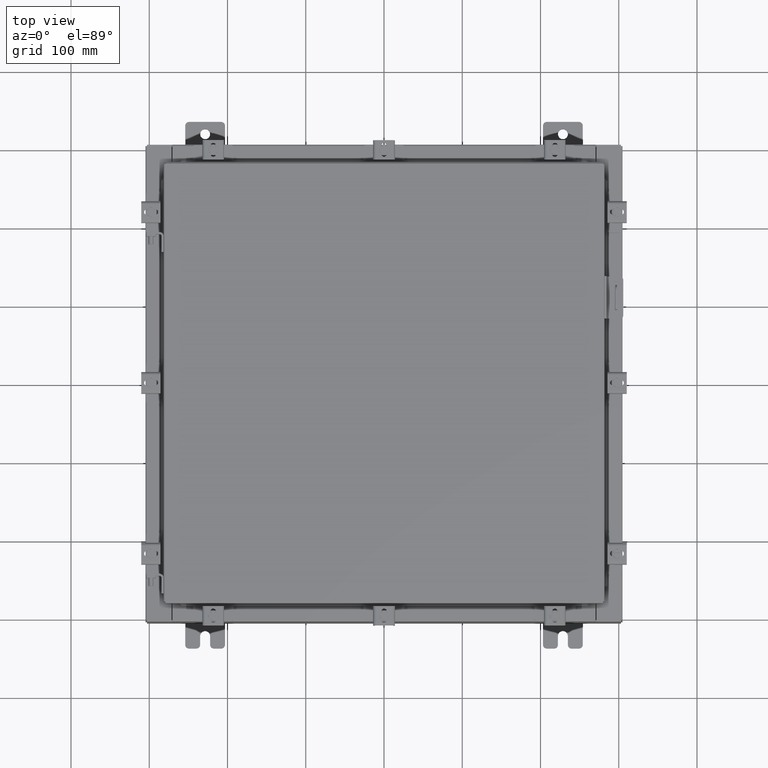
[diagram: clean part render]
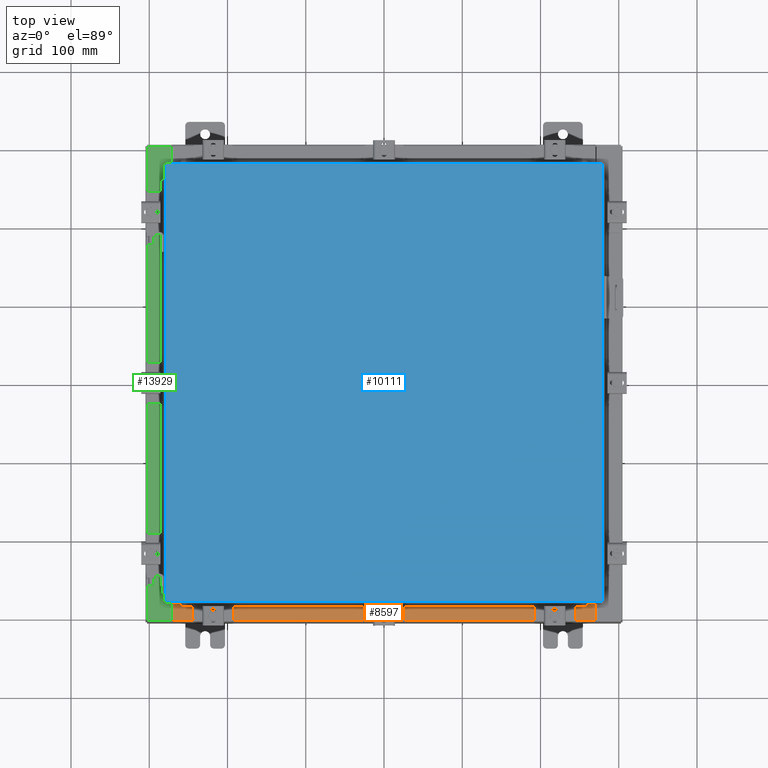
[diagram: same view with three faces highlighted in distinct colors, each labeled with its STEP entity id]
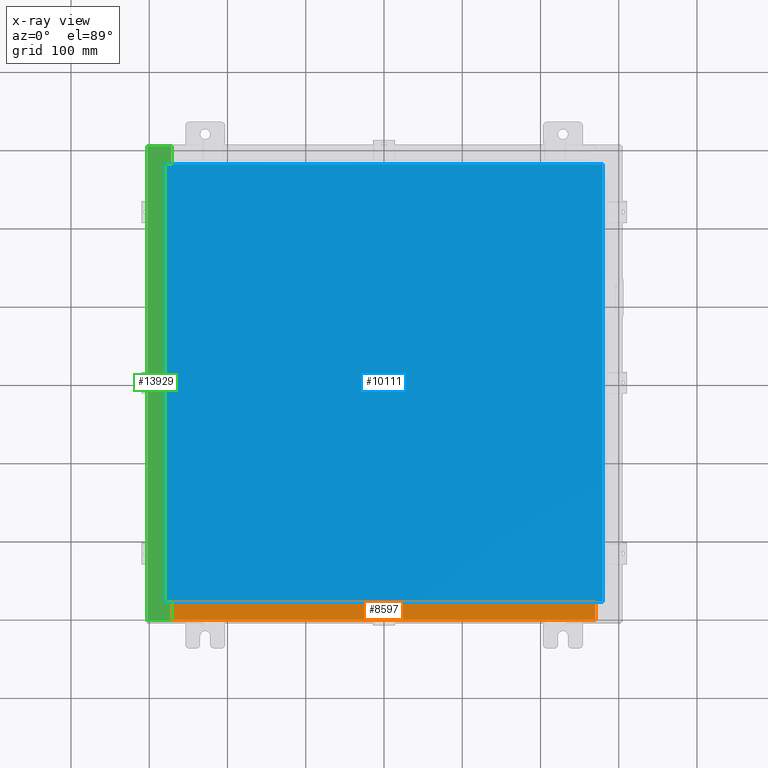
[diagram: x-ray of the same camera — body ghosted, the three highlighted faces saturated]
A machine part, top view with three faces highlighted in distinct colors.
The next image is the same camera in x-ray (body ghosted, the three faces saturated) — at least one of them is partly hidden behind the body in this view.
Their STEP definitions:

[orange] entity #8597 — the highlighted planar face has unit normal (-0, -0, 1).
#205 = LINE ( 'NONE', #3812, #9469 ) ;
#638 = CARTESIAN_POINT ( 'NONE',  ( 10.63720000000000200, -1.287299999999999900, 3.000000000000005300 ) ) ;
#991 = CARTESIAN_POINT ( 'NONE',  ( 10.63720000000000200, -1.300299999999999800, 3.000000000000005300 ) ) ;
#1097 = AXIS2_PLACEMENT_3D ( 'NONE', #4354, #21826, #11352 ) ;
#1126 = DIRECTION ( 'NONE',  ( -1.000000000000000000, 2.568202152506545800E-017, -9.159187855938968600E-032 ) ) ;
#1283 = VERTEX_POINT ( 'NONE', #4421 ) ;
#1821 = EDGE_LOOP ( 'NONE', ( #20573, #17112, #5939, #5387 ) ) ;
#2028 = CARTESIAN_POINT ( 'NONE',  ( -10.63720000000000200, -0.08770000000000000000, 3.000000000000000900 ) ) ;
#3298 = VERTEX_POINT ( 'NONE', #638 ) ;
#3812 = CARTESIAN_POINT ( 'NONE',  ( -10.63720000000000200, -0.07469999999999973900, 3.000000000000000900 ) ) ;
#4354 = CARTESIAN_POINT ( 'NONE',  ( 0.0000000000000000000, 1.069354855923099900E-014, 3.000000000000000900 ) ) ;
#4421 = CARTESIAN_POINT ( 'NONE',  ( 10.63720000000000400, -0.08769999999999965300, 3.000000000000000900 ) ) ;
#4562 = VERTEX_POINT ( 'NONE', #2028 ) ;
#4741 = DIRECTION ( 'NONE',  ( -1.000000000000000000, 0.0000000000000000000, 0.0000000000000000000 ) ) ;
#5387 = ORIENTED_EDGE ( 'NONE', *, *, #12896, .T. ) ;
#5939 = ORIENTED_EDGE ( 'NONE', *, *, #9220, .F. ) ;
#6288 = VECTOR ( 'NONE', #1126, 39.37007874015748100 ) ;
#6420 = CARTESIAN_POINT ( 'NONE',  ( 10.63720000000000400, -1.287299999999999900, 3.000000000000005300 ) ) ;
#8597 = ADVANCED_FACE ( 'NONE', ( #17156 ), #9621, .T. ) ;
#8784 = VERTEX_POINT ( 'NONE', #18961 ) ;
#9220 = EDGE_CURVE ( 'NONE', #1283, #3298, #14942, .T. ) ;
#9469 = VECTOR ( 'NONE', #16004, 39.37007874015748100 ) ;
#9621 = PLANE ( 'NONE',  #1097 ) ;
#10291 = VECTOR ( 'NONE', #13202, 39.37007874015748100 ) ;
#11352 = DIRECTION ( 'NONE',  ( 0.0000000000000000000, -1.000000000000000000, 3.566381192773190000E-015 ) ) ;
#12896 = EDGE_CURVE ( 'NONE', #1283, #4562, #15561, .T. ) ;
#13202 = DIRECTION ( 'NONE',  ( -0.0000000000000000000, -1.000000000000000000, 3.566381192773190000E-015 ) ) ;
#14942 = LINE ( 'NONE', #991, #10291 ) ;
#15561 = LINE ( 'NONE', #21987, #6288 ) ;
#16004 = DIRECTION ( 'NONE',  ( -0.0000000000000000000, 1.000000000000000000, -3.566381192773190000E-015 ) ) ;
#17112 = ORIENTED_EDGE ( 'NONE', *, *, #18108, .F. ) ;
#17156 = FACE_OUTER_BOUND ( 'NONE', #1821, .T. ) ;
#18108 = EDGE_CURVE ( 'NONE', #3298, #8784, #18502, .T. ) ;
#18502 = LINE ( 'NONE', #6420, #22055 ) ;
#18961 = CARTESIAN_POINT ( 'NONE',  ( -10.63720000000000200, -1.287299999999999200, 3.000000000000005300 ) ) ;
#20573 = ORIENTED_EDGE ( 'NONE', *, *, #20766, .F. ) ;
#20766 = EDGE_CURVE ( 'NONE', #8784, #4562, #205, .T. ) ;
#21826 = DIRECTION ( 'NONE',  ( 0.0000000000000000000, 3.566381192773190000E-015, 1.000000000000000000 ) ) ;
#21987 = CARTESIAN_POINT ( 'NONE',  ( -2.252313287748515100E-018, -0.08770000000000000000, 3.000000000000001300 ) ) ;
#22055 = VECTOR ( 'NONE', #4741, 39.37007874015748100 ) ;

[blue] entity #10111 — the highlighted planar face has unit normal (0, 0, -1).
#2422 = VERTEX_POINT ( 'NONE', #14852 ) ;
#2661 = VERTEX_POINT ( 'NONE', #15449 ) ;
#2706 = CARTESIAN_POINT ( 'NONE',  ( -11.00630000000000300, -11.00630000000000100, 0.0000000000000000000 ) ) ;
#3017 = PLANE ( 'NONE',  #5433 ) ;
#3217 = CARTESIAN_POINT ( 'NONE',  ( 11.00629999999999400, 11.00629999999999600, 0.0000000000000000000 ) ) ;
#3891 = CARTESIAN_POINT ( 'NONE',  ( -11.00630000000000300, 11.00629999999999600, 0.0000000000000000000 ) ) ;
#4821 = EDGE_CURVE ( 'NONE', #18234, #2661, #11670, .T. ) ;
#5433 = AXIS2_PLACEMENT_3D ( 'NONE', #16969, #6525, #18693 ) ;
#5897 = EDGE_CURVE ( 'NONE', #18603, #2422, #17352, .T. ) ;
#6192 = ORIENTED_EDGE ( 'NONE', *, *, #17171, .T. ) ;
#6525 = DIRECTION ( 'NONE',  ( 0.0000000000000000000, 0.0000000000000000000, -1.000000000000000000 ) ) ;
#6606 = ORIENTED_EDGE ( 'NONE', *, *, #5897, .T. ) ;
#7047 = DIRECTION ( 'NONE',  ( 0.0000000000000000000, 1.000000000000000000, 0.0000000000000000000 ) ) ;
#7077 = ORIENTED_EDGE ( 'NONE', *, *, #16208, .T. ) ;
#7818 = CARTESIAN_POINT ( 'NONE',  ( 11.00629999999999400, 11.00629999999999600, 0.0000000000000000000 ) ) ;
#8899 = FACE_OUTER_BOUND ( 'NONE', #21092, .T. ) ;
#10111 = ADVANCED_FACE ( 'NONE', ( #8899 ), #3017, .F. ) ;
#11168 = VECTOR ( 'NONE', #7047, 39.37007874015748100 ) ;
#11465 = DIRECTION ( 'NONE',  ( 1.000000000000000000, -0.0000000000000000000, -0.0000000000000000000 ) ) ;
#11615 = VECTOR ( 'NONE', #11465, 39.37007874015748100 ) ;
#11670 = LINE ( 'NONE', #7818, #20418 ) ;
#14309 = ORIENTED_EDGE ( 'NONE', *, *, #4821, .T. ) ;
#14349 = DIRECTION ( 'NONE',  ( 0.0000000000000000000, -1.000000000000000000, 0.0000000000000000000 ) ) ;
#14852 = CARTESIAN_POINT ( 'NONE',  ( 11.00629999999999400, -11.00630000000000100, 0.0000000000000000000 ) ) ;
#14970 = LINE ( 'NONE', #3891, #15503 ) ;
#15449 = CARTESIAN_POINT ( 'NONE',  ( -11.00630000000000300, 11.00629999999999600, 0.0000000000000000000 ) ) ;
#15503 = VECTOR ( 'NONE', #14349, 39.37007874015748100 ) ;
#15812 = LINE ( 'NONE', #17432, #11168 ) ;
#16208 = EDGE_CURVE ( 'NONE', #2422, #18234, #15812, .T. ) ;
#16326 = CARTESIAN_POINT ( 'NONE',  ( -11.00630000000000300, -11.00630000000000100, 0.0000000000000000000 ) ) ;
#16969 = CARTESIAN_POINT ( 'NONE',  ( 0.0000000000000000000, 0.0000000000000000000, 0.0000000000000000000 ) ) ;
#17171 = EDGE_CURVE ( 'NONE', #2661, #18603, #14970, .T. ) ;
#17352 = LINE ( 'NONE', #2706, #11615 ) ;
#17432 = CARTESIAN_POINT ( 'NONE',  ( 11.00629999999999400, -11.00630000000000100, 0.0000000000000000000 ) ) ;
#18234 = VERTEX_POINT ( 'NONE', #3217 ) ;
#18603 = VERTEX_POINT ( 'NONE', #16326 ) ;
#18693 = DIRECTION ( 'NONE',  ( -1.000000000000000000, 0.0000000000000000000, -0.0000000000000000000 ) ) ;
#20418 = VECTOR ( 'NONE', #21782, 39.37007874015748100 ) ;
#21092 = EDGE_LOOP ( 'NONE', ( #6606, #7077, #14309, #6192 ) ) ;
#21782 = DIRECTION ( 'NONE',  ( -1.000000000000000000, -0.0000000000000000000, -0.0000000000000000000 ) ) ;

[green] entity #13929 — the highlighted planar face has unit normal (0, 0, -1).
#86 = CIRCLE ( 'NONE', #17726, 0.01867499999999949400 ) ;
#227 = VECTOR ( 'NONE', #9045, 39.37007874015748100 ) ;
#263 = CARTESIAN_POINT ( 'NONE',  ( -10.69970000000002300, -10.63109999999999800, 5.925300000000008000 ) ) ;
#383 = VERTEX_POINT ( 'NONE', #21694 ) ;
#528 = DIRECTION ( 'NONE',  ( -1.000000000000000000, 0.0000000000000000000, 0.0000000000000000000 ) ) ;
#947 = CARTESIAN_POINT ( 'NONE',  ( -10.69970000000002300, 10.63109999999999600, 5.925300000000008000 ) ) ;
#1651 = DIRECTION ( 'NONE',  ( -1.000000000000000000, 0.0000000000000000000, 0.0000000000000000000 ) ) ;
#1931 = CARTESIAN_POINT ( 'NONE',  ( -10.69970000000002300, -3.338884789195309000E-030, 5.925300000000008000 ) ) ;
#2014 = DIRECTION ( 'NONE',  ( 1.000000000000000000, 0.0000000000000000000, 0.0000000000000000000 ) ) ;
#2044 = EDGE_CURVE ( 'NONE', #20932, #8613, #21930, .T. ) ;
#2056 = DIRECTION ( 'NONE',  ( -7.132762385546384700E-015, -0.0000000000000000000, 1.000000000000000000 ) ) ;
#2122 = AXIS2_PLACEMENT_3D ( 'NONE', #3849, #17809, #7366 ) ;
#2765 = AXIS2_PLACEMENT_3D ( 'NONE', #15658, #5225, #17430 ) ;
#3344 = VERTEX_POINT ( 'NONE', #5958 ) ;
#3488 = ORIENTED_EDGE ( 'NONE', *, *, #3676, .T. ) ;
#3600 = ORIENTED_EDGE ( 'NONE', *, *, #10267, .F. ) ;
#3676 = EDGE_CURVE ( 'NONE', #3344, #21624, #3859, .T. ) ;
#3849 = CARTESIAN_POINT ( 'NONE',  ( -4.252457061909017700E-014, 0.0000000000000000000, 5.925300000000084400 ) ) ;
#3859 = LINE ( 'NONE', #20006, #17228 ) ;
#3980 = VECTOR ( 'NONE', #9405, 39.37007874015748100 ) ;
#4167 = CARTESIAN_POINT ( 'NONE',  ( -10.75005000000002300, -10.63109999999999600, 5.925300000000008000 ) ) ;
#4292 = LINE ( 'NONE', #7259, #227 ) ;
#4533 = LINE ( 'NONE', #5896, #3980 ) ;
#4833 = CARTESIAN_POINT ( 'NONE',  ( -10.75005000000002300, -10.59374999999999800, 5.925300000000008000 ) ) ;
#4870 = CARTESIAN_POINT ( 'NONE',  ( -10.71270000000002300, 10.59374999999999800, 5.925300000000008000 ) ) ;
#5001 = EDGE_CURVE ( 'NONE', #20591, #12295, #4292, .T. ) ;
#5152 = CARTESIAN_POINT ( 'NONE',  ( -10.71270000000002300, 10.59374999999999800, 5.925300000000008000 ) ) ;
#5225 = DIRECTION ( 'NONE',  ( -7.132762385546384700E-015, -0.0000000000000000000, 1.000000000000000000 ) ) ;
#5376 = ORIENTED_EDGE ( 'NONE', *, *, #21462, .F. ) ;
#5673 = EDGE_CURVE ( 'NONE', #12996, #19179, #15444, .T. ) ;
#5765 = EDGE_CURVE ( 'NONE', #11090, #3344, #4533, .T. ) ;
#5896 = CARTESIAN_POINT ( 'NONE',  ( -10.69970000000002300, -3.338884789195309000E-030, 5.925300000000008000 ) ) ;
#5958 = CARTESIAN_POINT ( 'NONE',  ( -10.69970000000002300, 11.92529999999999800, 5.925300000000008000 ) ) ;
#6317 = EDGE_LOOP ( 'NONE', ( #7583, #16307, #3488, #9797, #8491, #13919, #9951, #8717, #5376, #3600, #13383, #11275 ) ) ;
#7241 = VECTOR ( 'NONE', #528, 39.37007874015748100 ) ;
#7259 = CARTESIAN_POINT ( 'NONE',  ( -10.75005000000002300, 10.59374999999999800, 5.925300000000008000 ) ) ;
#7366 = DIRECTION ( 'NONE',  ( -1.000000000000000000, 0.0000000000000000000, -7.132762385546384700E-015 ) ) ;
#7583 = ORIENTED_EDGE ( 'NONE', *, *, #16181, .F. ) ;
#7629 = LINE ( 'NONE', #12152, #12276 ) ;
#7792 = LINE ( 'NONE', #12708, #7241 ) ;
#7917 = CARTESIAN_POINT ( 'NONE',  ( -11.91230000000002300, 11.92529999999999800, 5.925299999999999100 ) ) ;
#8308 = EDGE_CURVE ( 'NONE', #8613, #11518, #13360, .T. ) ;
#8447 = VECTOR ( 'NONE', #2014, 39.37007874015748100 ) ;
#8491 = ORIENTED_EDGE ( 'NONE', *, *, #2044, .T. ) ;
#8613 = VERTEX_POINT ( 'NONE', #16548 ) ;
#8717 = ORIENTED_EDGE ( 'NONE', *, *, #5673, .F. ) ;
#9045 = DIRECTION ( 'NONE',  ( 1.000000000000000000, 0.0000000000000000000, 0.0000000000000000000 ) ) ;
#9067 = CARTESIAN_POINT ( 'NONE',  ( -10.71270000000002300, -10.59374999999999800, 5.925300000000008000 ) ) ;
#9405 = DIRECTION ( 'NONE',  ( -3.120540565805877600E-031, 1.000000000000000000, -2.225807437035179500E-045 ) ) ;
#9663 = DIRECTION ( 'NONE',  ( 9.163200904511462000E-017, 1.000000000000000000, 6.535893474290396800E-031 ) ) ;
#9713 = VERTEX_POINT ( 'NONE', #9067 ) ;
#9797 = ORIENTED_EDGE ( 'NONE', *, *, #17827, .F. ) ;
#9951 = ORIENTED_EDGE ( 'NONE', *, *, #13895, .F. ) ;
#10206 = CARTESIAN_POINT ( 'NONE',  ( -10.75005000000002300, 10.59374999999999800, 5.925300000000008000 ) ) ;
#10239 = VECTOR ( 'NONE', #22507, 39.37007874015748100 ) ;
#10267 = EDGE_CURVE ( 'NONE', #12295, #9713, #20072, .T. ) ;
#11090 = VERTEX_POINT ( 'NONE', #947 ) ;
#11275 = ORIENTED_EDGE ( 'NONE', *, *, #11528, .F. ) ;
#11292 = DIRECTION ( 'NONE',  ( -1.000000000000000000, -4.084933421431495300E-032, -7.132762385546384700E-015 ) ) ;
#11518 = VERTEX_POINT ( 'NONE', #263 ) ;
#11528 = EDGE_CURVE ( 'NONE', #383, #20591, #86, .T. ) ;
#12152 = CARTESIAN_POINT ( 'NONE',  ( -10.69970000000002300, 10.63109999999999600, 5.925300000000008000 ) ) ;
#12276 = VECTOR ( 'NONE', #1651, 39.37007874015748100 ) ;
#12295 = VERTEX_POINT ( 'NONE', #4870 ) ;
#12526 = CARTESIAN_POINT ( 'NONE',  ( -10.75005000000002300, 10.61242499999999800, 5.925300000000008000 ) ) ;
#12708 = CARTESIAN_POINT ( 'NONE',  ( -10.71270000000002300, -10.59374999999999800, 5.925300000000008000 ) ) ;
#12956 = CARTESIAN_POINT ( 'NONE',  ( -11.91230000000002500, -11.92530000000000000, 5.925299999999999100 ) ) ;
#12996 = VERTEX_POINT ( 'NONE', #4833 ) ;
#13093 = LINE ( 'NONE', #21152, #8447 ) ;
#13360 = LINE ( 'NONE', #1931, #22076 ) ;
#13383 = ORIENTED_EDGE ( 'NONE', *, *, #5001, .F. ) ;
#13810 = CARTESIAN_POINT ( 'NONE',  ( -4.252457061909017700E-014, -11.92530000000000000, 5.925300000000084400 ) ) ;
#13895 = EDGE_CURVE ( 'NONE', #19179, #11518, #13093, .T. ) ;
#13919 = ORIENTED_EDGE ( 'NONE', *, *, #8308, .T. ) ;
#13929 = ADVANCED_FACE ( 'NONE', ( #17715 ), #16061, .F. ) ;
#14143 = DIRECTION ( 'NONE',  ( -3.120540565805877600E-031, 1.000000000000000000, -2.225807437035179500E-045 ) ) ;
#14288 = DIRECTION ( 'NONE',  ( 1.000000000000000000, 0.0000000000000000000, 0.0000000000000000000 ) ) ;
#15444 = CIRCLE ( 'NONE', #2765, 0.01867499999999949400 ) ;
#15658 = CARTESIAN_POINT ( 'NONE',  ( -10.75005000000002300, -10.61242499999999800, 5.925300000000008000 ) ) ;
#16061 = PLANE ( 'NONE',  #2122 ) ;
#16181 = EDGE_CURVE ( 'NONE', #11090, #383, #7629, .T. ) ;
#16307 = ORIENTED_EDGE ( 'NONE', *, *, #5765, .T. ) ;
#16548 = CARTESIAN_POINT ( 'NONE',  ( -10.69970000000002300, -11.92530000000000000, 5.925300000000008000 ) ) ;
#17228 = VECTOR ( 'NONE', #11292, 39.37007874015748100 ) ;
#17287 = VECTOR ( 'NONE', #20888, 39.37007874015748100 ) ;
#17430 = DIRECTION ( 'NONE',  ( 1.000000000000000000, 0.0000000000000000000, 0.0000000000000000000 ) ) ;
#17715 = FACE_OUTER_BOUND ( 'NONE', #6317, .T. ) ;
#17726 = AXIS2_PLACEMENT_3D ( 'NONE', #12526, #2056, #14288 ) ;
#17809 = DIRECTION ( 'NONE',  ( 7.132762385546384700E-015, 0.0000000000000000000, -1.000000000000000000 ) ) ;
#17827 = EDGE_CURVE ( 'NONE', #20932, #21624, #22563, .T. ) ;
#18266 = CARTESIAN_POINT ( 'NONE',  ( -11.91230000000002500, 11.92529999999999800, 5.925299999999999100 ) ) ;
#19179 = VERTEX_POINT ( 'NONE', #4167 ) ;
#20006 = CARTESIAN_POINT ( 'NONE',  ( -4.252457061909017700E-014, 11.92529999999999800, 5.925300000000084400 ) ) ;
#20072 = LINE ( 'NONE', #5152, #10239 ) ;
#20591 = VERTEX_POINT ( 'NONE', #10206 ) ;
#20888 = DIRECTION ( 'NONE',  ( 1.000000000000000000, -4.379057701015053300E-047, 7.132762385546384700E-015 ) ) ;
#20932 = VERTEX_POINT ( 'NONE', #12956 ) ;
#21152 = CARTESIAN_POINT ( 'NONE',  ( -10.75005000000002300, -10.63109999999999600, 5.925300000000008000 ) ) ;
#21462 = EDGE_CURVE ( 'NONE', #9713, #12996, #7792, .T. ) ;
#21624 = VERTEX_POINT ( 'NONE', #18266 ) ;
#21694 = CARTESIAN_POINT ( 'NONE',  ( -10.75005000000002300, 10.63109999999999600, 5.925300000000008000 ) ) ;
#21930 = LINE ( 'NONE', #13810, #17287 ) ;
#22018 = VECTOR ( 'NONE', #9663, 39.37007874015748100 ) ;
#22076 = VECTOR ( 'NONE', #14143, 39.37007874015748100 ) ;
#22507 = DIRECTION ( 'NONE',  ( -0.0000000000000000000, -1.000000000000000000, -0.0000000000000000000 ) ) ;
#22563 = LINE ( 'NONE', #7917, #22018 ) ;